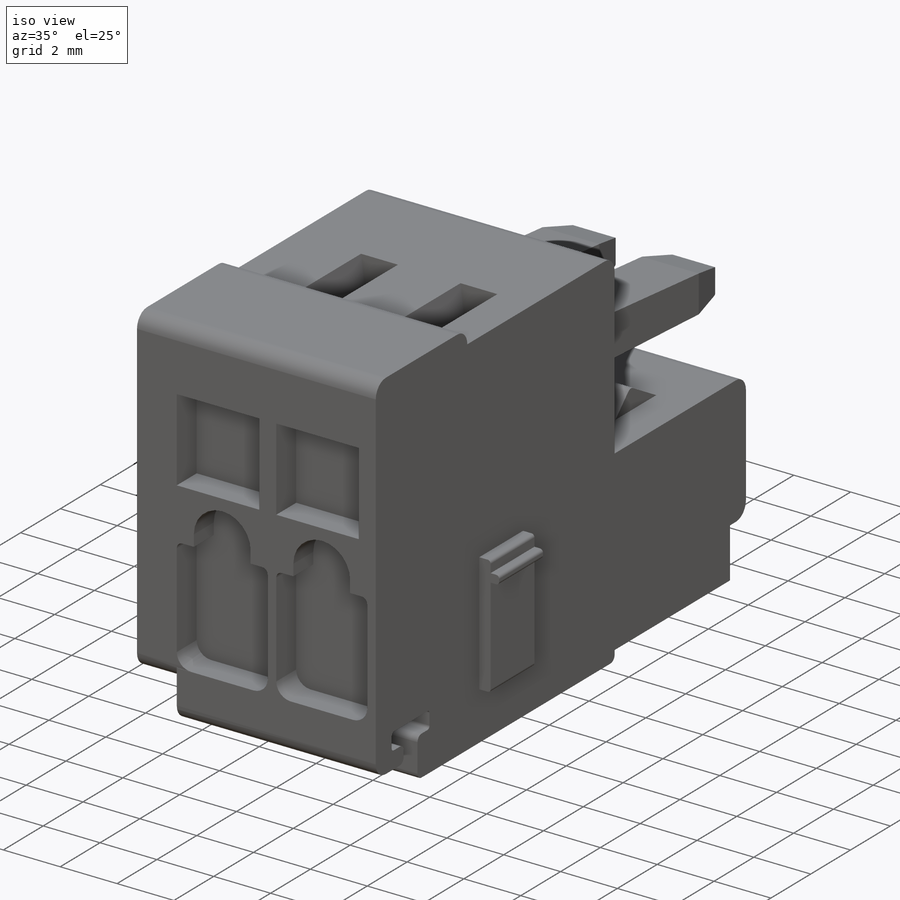
[diagram: iso view]
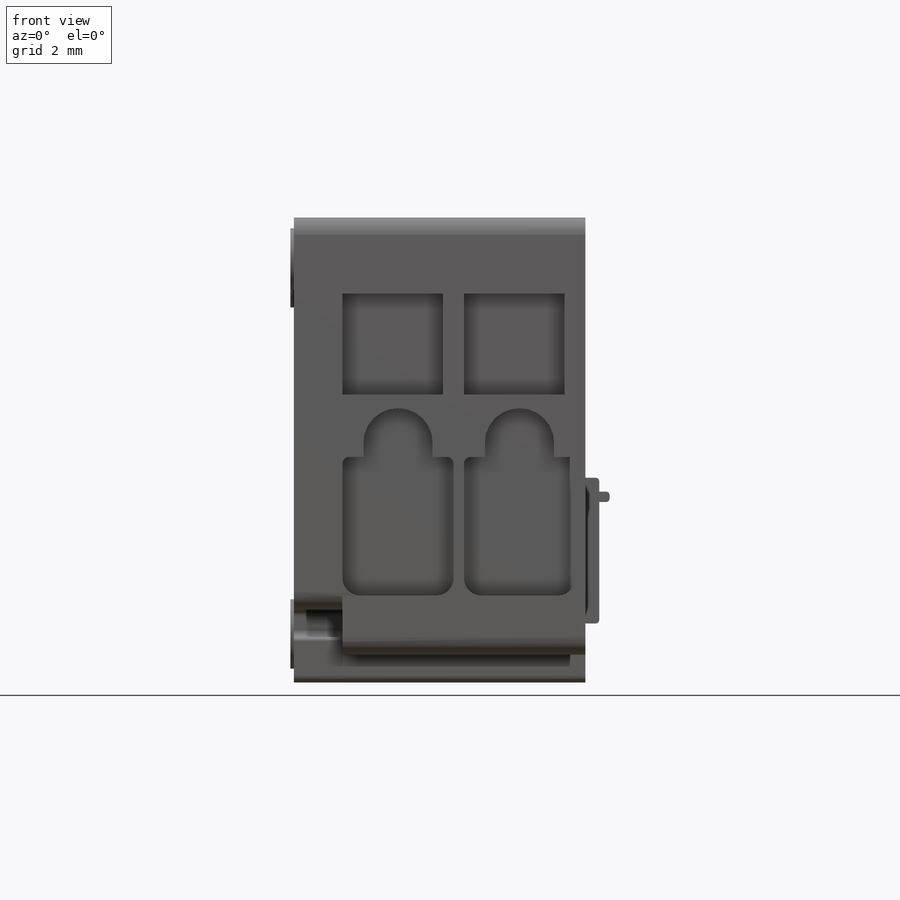
[diagram: front view]
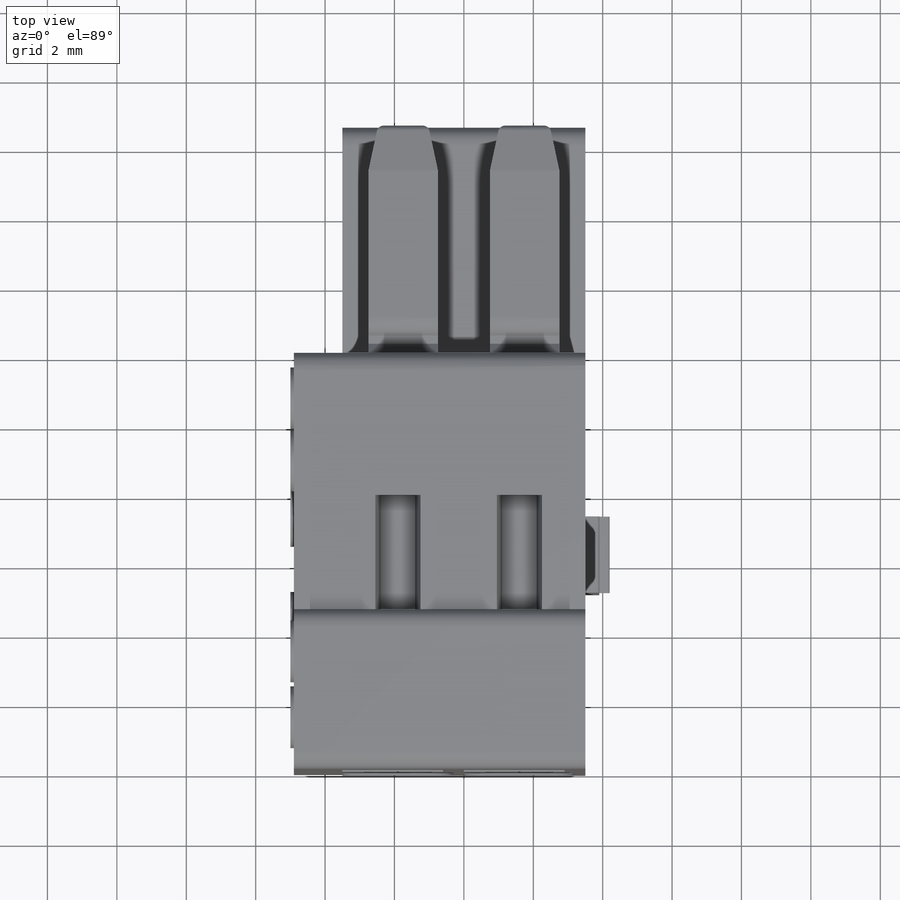
[diagram: top view]
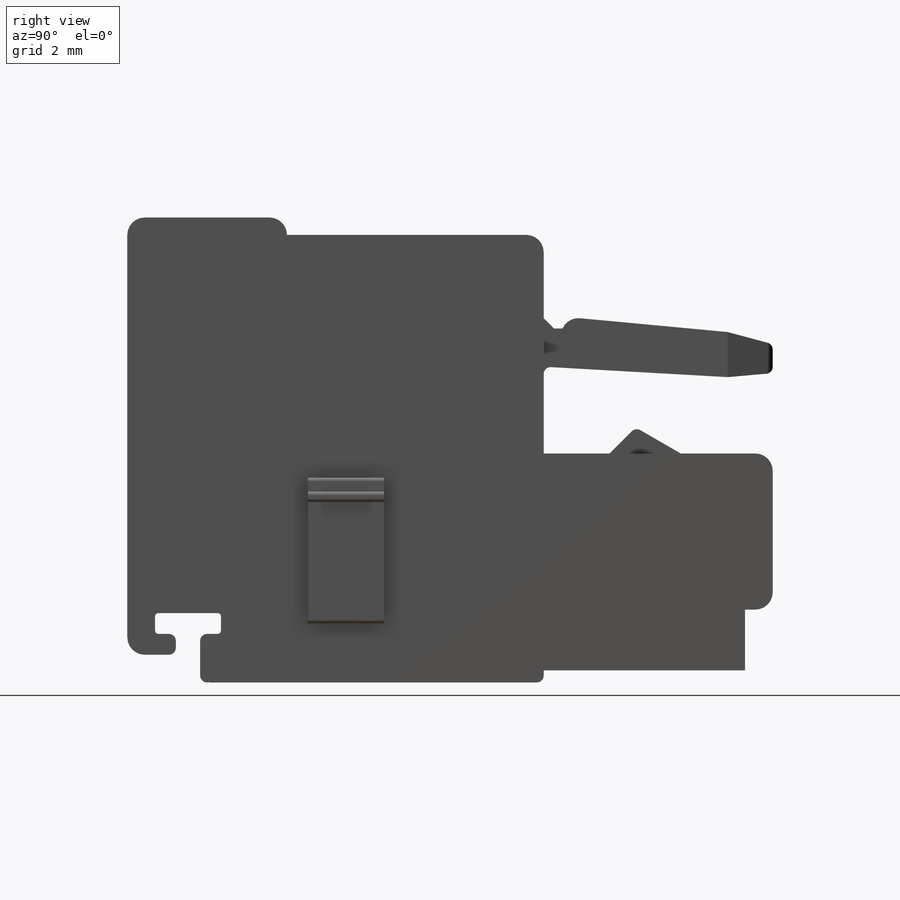
[diagram: right view]
SOLIDWORKS PART (.sldprt)
format: sldprt  version: not decoded by parser v0  size: 697,856 bytes
history: native  units: mm
features: sketch x13, fillet x11, extrude x8, cut_extrude x2, pattern_linear x2, plane x2, chamfer x2, material x1, cut_revolve x1 + 2 further entries (+12 scaffold rows collapsed)
feature tree (56):
  scaffold x12  (default folders/planes/origin — collapsed)
  material  "Material <not specified>"
  sketch  "Sketch1"  dims[D1=9.9mm D2=2.1mm D3=6.6mm D4=4.5mm D5=6.6mm D6=6.3mm D7=7.4mm D8=0.49mm D9=4.6mm D10=12.6mm D11=1.4mm D12=1.9mm D13=0.6mm D14=1.4mm D15=0.7mm D16=0.6mm]
  extrude  "Extrude1"  Depth=7mm
  fillet  "Fillet3"  Radius=0.5mm
  fillet  "Fillet6"  Radius=0.2mm
  fillet  "Fillet7"  Radius=0.1mm
  sketch  "Sketch2"  dims[D3=0.5mm D1=0.0mm D2=0.1mm]
  extrude  "Extrude2"  Depth=1.4mm
  sketch  "Sketch3"  dims[c1.D10=1.0mm c1.D13=1.0mm c1.D12=1.0mm c1.D3=1.0mm c1.D1=4.0mm c1.D2=1.6mm c2.D3=2.9mm c2.D4=2.9mm c2.D5=2.9mm c2.D6=0.6mm c2.D7=2.2mm c2.D8=0.6mm c2.D9=2.2mm c2.D11=0.4mm c2.D12=0.3mm c2.D13=0.4mm c3.D11=0.3mm c3.D12=~1.195738mm c3.D14=~0.195738mm c4.D12=0.4mm c4.D3=1.4mm]
  cut_extrude  "Extrude3"  Depth=1mm
  fillet  "Fillet8"  Radius=0.5mm
  fillet  "Fillet9"  Radius=0.2mm
  fillet  "Fillet1"  Radius=0.2mm
  fillet  "Fillet2"  Radius=0.5mm
  pattern_linear  "LPattern1"  Count1=2 Count2=1 Spacing1=3.5mm Spacing2=10mm
  plane  "Plane1"  Offset=5.2mm
  sketch  "Sketch4"  dims[D1=4.2mm D2=0.4mm D3=0.3mm D4=0.3mm D5=3.5mm D6=1.7mm]
  extrude  "Extrude4"  Depth=2.2mm
  fillet  "Fillet10"  Radius=0.1mm
  sketch  "Sketch5"  dims[D1=5.8mm D2=1.75mm]
  extrude  "Extrude5"  Depth=1.7mm
  plane  "Plane2"  Offset=1.75mm
  sketch  "Sketch6"  dims[c1.D1=3.0mm c1.D2=1.1mm c2.D2=~124.286877deg c3.D2=1.3mm c3.D3=1.5mm c3.D4=0.2mm c3.D5=0.75mm c4.D5=~55.713123deg c5.D5=2.25mm]
  cut_revolve  "Cut-Revolve1"  Angle=360deg
  sketch  "Sketch7"  dims[c1.D1=6.6mm c1.D2=~5.308484mm c2.D2=86.7603deg c2.D3=~4.726265mm c3.D3=~2.103672deg c3.D4=~0.424264mm c4.D4=135.0deg c5.D4=~0.343544mm c6.D4=90.0deg c7.D4=5.3mm c7.D5=1.3mm c7.D6=~0.241742mm c7.D7=0.3mm c8.D6=1.1mm c8.D7=~0.348334mm c9.D7=~170.343372deg c9.D8=5.3mm c10.D8=171.7603deg c10.D9=~1.742051mm c10.D10=~0.837931mm c10.D11=2.2mm]
  extrude  "Extrude6"  Depth=2mm
  sketch  "Sketch8"  dims[c1.D1=~2.048868mm c1.D2=~0.749938mm c1.D3=~1.060572mm c2.D3=45.0deg c2.D4=1.9mm]
  extrude  "Extrude7"  Depth=0.9mm
  sketch  "Sketch9"  dims[D1=1.1mm D2=3.3mm]
  cut_extrude  "Extrude8"  Depth=0.65mm
  chamfer  "Chamfer1"  Distance=0.3mm Angle=45deg
  fillet  "Fillet11"  Radius=0.2mm
  chamfer  "Chamfer2"  Distance=1.3mm Angle=12deg
  fillet  "Fillet12"  Radius=0.2mm
  fillet  "Fillet13"  Radius=0.5mm
  pattern_linear  "LPattern2"  Count1=2 Count2=1 Spacing1=3.5mm Spacing2=10mm
  sketch  "Sketch10"  dims[c1.D1=1.78mm c1.D2=1.78mm c1.D3=1.78mm c2.D2=1.3mm c2.D3=1.2mm]
  extrude  "Extrude9"  Depth=0.1mm
  sketch  "Sketch11"  dims[D1=1.8mm D2=1.9mm D3=1.2mm D4=1.5mm]
  "Sketch-Pattern1"
  sketch  "Sketch12"  dims[c1.D1=2.0mm c1.D2=2.0mm c1.D3=2.0mm c2.D2=1.3mm c2.D3=1.4mm]
  extrude  "Extrude10"  Depth=0.1mm
  sketch  "Sketch13"  dims[D1=3.1mm D2=3.3mm]
  "Sketch-Pattern2"
decode coverage: 39 of 39 modeling features carry decoded parameters; 2 rows unclassified (native names shown)
note: ~ marks probable driven/reference dimensions
note: suppression state not decoded; provenance and decode notes live in map.json
